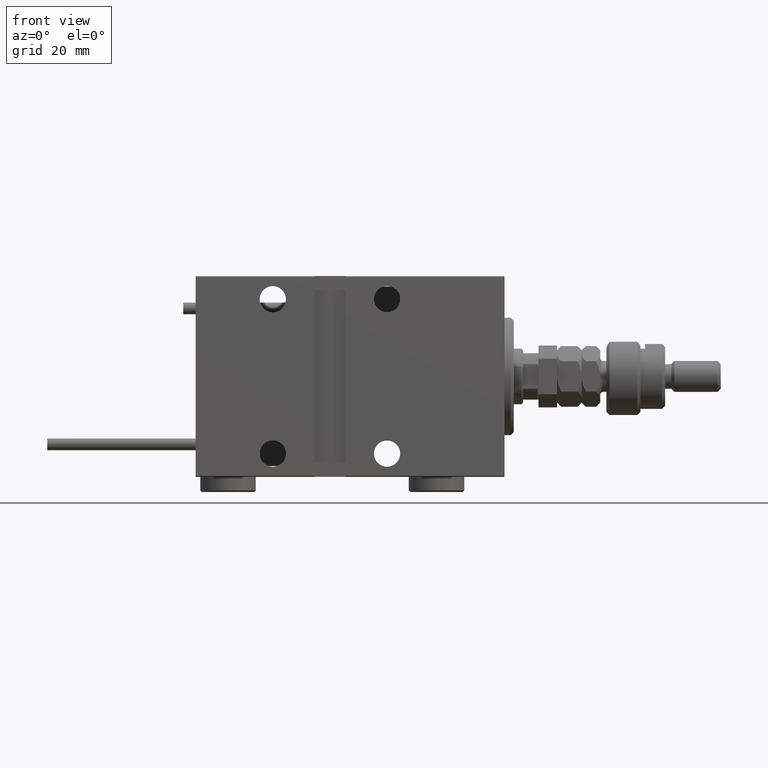
[diagram: clean part render]
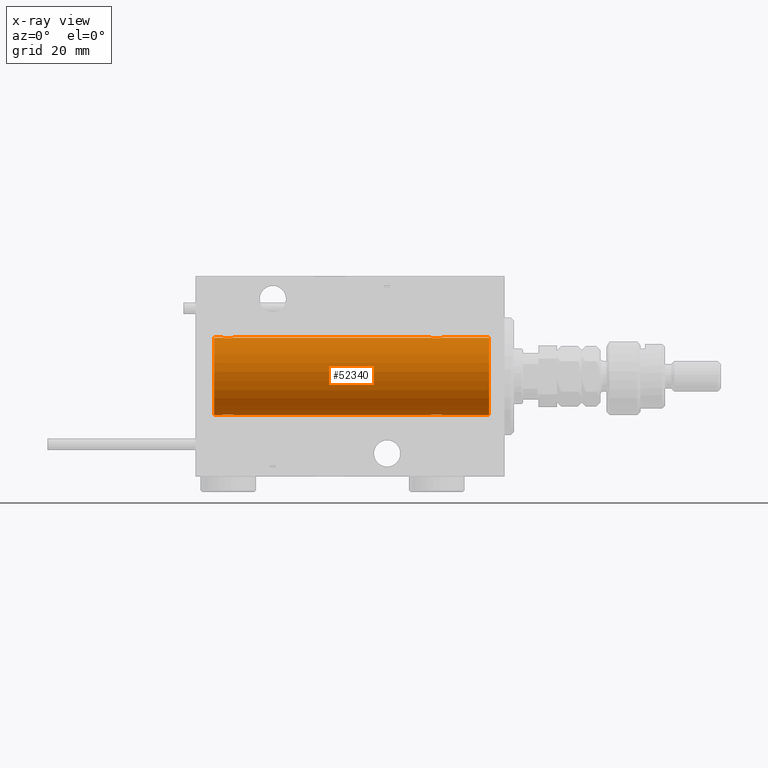
[diagram: x-ray — body ghosted, one internal face saturated and labeled with its STEP entity id]
A machine part, front view, then the same camera in x-ray: the body is ghosted and one INTERNAL B-rep face — a face not visible from any outside direction — is saturated and labeled: STEP entity #52340.
In plain terms, the highlighted cylindrical surface (partial cylindrical patch) has radius 12.5 mm, axis along (1, 0, -0).
Its self-contained STEP definition (entity closure, byte-faithful):
#375 = CARTESIAN_POINT ( 'NONE',  ( 90.71980790594582800, 1.590288205413965539, -12.39864157855464732 ) ) ;
#910 = CARTESIAN_POINT ( 'NONE',  ( 90.14415233770294833, 1.897967064543078619, -12.35517291625592051 ) ) ;
#1347 = CARTESIAN_POINT ( 'NONE',  ( 94.00000000000000000, 0.000000000000000000, 12.50000000000000000 ) ) ;
#2053 = CARTESIAN_POINT ( 'NONE',  ( 88.17897166499305683, 1.507394620545633890, 12.40913174964213539 ) ) ;
#2571 = CARTESIAN_POINT ( 'NONE',  ( 23.89747729701804957, 0.6455696738844942661, 12.48390768591463207 ) ) ;
#2819 = CARTESIAN_POINT ( 'NONE',  ( 23.32102833500698225, 1.507394620545640773, -12.40913174964213184 ) ) ;
#2847 = CARTESIAN_POINT ( 'NONE',  ( 20.49266449635678100, 1.321095788880536137, 12.43034574091278266 ) ) ;
#3076 = CARTESIAN_POINT ( 'NONE',  ( 19.99999999999999645, 0.1323736289504319763, -12.50000000000000000 ) ) ;
#3093 = VECTOR ( 'NONE', #24414, 1000.000000000000000 ) ;
#3253 = CARTESIAN_POINT ( 'NONE',  ( 94.00000000000000000, 1.530808498934191521E-15, -12.50000000000000000 ) ) ;
#3480 = AXIS2_PLACEMENT_3D ( 'NONE', #44845, #20103, #40459 ) ;
#3576 = CARTESIAN_POINT ( 'NONE',  ( 94.00000000000000000, 0.000000000000000000, 12.50000000000000000 ) ) ;
#3623 = CARTESIAN_POINT ( 'NONE',  ( 22.12992629360264729, 2.000049200055402210, -12.33895470450623044 ) ) ;
#3745 = AXIS2_PLACEMENT_3D ( 'NONE', #21519, #28984, #50094 ) ;
#4206 = CARTESIAN_POINT ( 'NONE',  ( 89.76269462454600045, 1.986986967296526352, -12.34109209020653530 ) ) ;
#4486 = CARTESIAN_POINT ( 'NONE',  ( 91.29742491916158542, 0.8868029758979329991, -12.46909283808506430 ) ) ;
#4746 = LINE ( 'NONE', #47287, #48140 ) ;
#4981 = ORIENTED_EDGE ( 'NONE', *, *, #25136, .T. ) ;
#5015 = DIRECTION ( 'NONE',  ( -1.000000000000000000, -0.000000000000000000, -0.000000000000000000 ) ) ;
#5053 = CARTESIAN_POINT ( 'NONE',  ( 19.99999999999999645, -7.265724481447607133E-23, 12.50000000000000000 ) ) ;
#5201 = CARTESIAN_POINT ( 'NONE',  ( 94.00000000000000000, 0.000000000000000000, 12.50000000000000000 ) ) ;
#5260 = LINE ( 'NONE', #22514, #32024 ) ;
#5859 = CARTESIAN_POINT ( 'NONE',  ( 23.98698791483651149, 0.2624928479599948905, 12.49789934882883458 ) ) ;
#6431 = CARTESIAN_POINT ( 'NONE',  ( 88.85584766229712272, 1.897967064543083948, 12.35517291625591874 ) ) ;
#6465 = B_SPLINE_CURVE_WITH_KNOTS ( 'NONE', 3,
 ( #29191, #20919, #37421, #46470, #8857, #29454, #25594, #54144, #21456, #25037, #17336, #50842, #8314, #33024, #4206, #9126, #910, #16794, #33568, #375, #42085, #12674, #13220, #46739, #4486, #21199, #29990, #25850, #17057, #33829 ),
 .UNSPECIFIED., .F., .F.,
 ( 4, 2, 2, 2, 2, 2, 2, 2, 2, 2, 2, 2, 2, 2, 4 ),
 ( 1.893746017792005895E-18, 0.0003914362731607732410, 0.0007828725463215445305, 0.001174308819482315983, 0.001565745092643087326, 0.002348617638964600740, 0.003131490185286113937, 0.003522926458446871186, 0.003914362731607627134, 0.004305799004768384383, 0.004697235277929140765, 0.005088671551089898014, 0.005480107824250654396, 0.005871544097411410777, 0.006262980370572168026 ),
 .UNSPECIFIED. ) ;
#6575 = VERTEX_POINT ( 'NONE', #46160 ) ;
#6643 = CARTESIAN_POINT ( 'NONE',  ( 21.47436412829510033, 1.947190906025044077, -12.34781876294798053 ) ) ;
#7196 = CARTESIAN_POINT ( 'NONE',  ( 24.00000000000000711, 0.1306394121199392910, -12.50000000000000533 ) ) ;
#7230 = CIRCLE ( 'NONE', #3745, 12.50000000000000000 ) ;
#7458 = CARTESIAN_POINT ( 'NONE',  ( 20.49398366327207910, 1.322451657002076120, -12.43019346654084956 ) ) ;
#7929 = VECTOR ( 'NONE', #47191, 1000.000000000000000 ) ;
#8314 = CARTESIAN_POINT ( 'NONE',  ( 89.23788193668380586, 1.999901172190666765, -12.33897869807161385 ) ) ;
#8633 = CIRCLE ( 'NONE', #46340, 12.50000000000000000 ) ;
#8857 = CARTESIAN_POINT ( 'NONE',  ( 87.60252270298197175, 0.6455696738844840521, -12.48390768591463384 ) ) ;
#9098 = ORIENTED_EDGE ( 'NONE', *, *, #28061, .T. ) ;
#9126 = CARTESIAN_POINT ( 'NONE',  ( 90.01937350851557085, 1.935814255713560472, -12.34922241902463114 ) ) ;
#9471 = EDGE_CURVE ( 'NONE', #24945, #36253, #32412, .T. ) ;
#10240 = CARTESIAN_POINT ( 'NONE',  ( 24.00000000000000000, -2.019790789754703983E-15, 12.50000000000000000 ) ) ;
#10519 = CARTESIAN_POINT ( 'NONE',  ( 23.59036680009405629, 1.219754986802283003, 12.44082361696003858 ) ) ;
#10823 = CARTESIAN_POINT ( 'NONE',  ( 5.000000000000004441, 0.000000000000000000, 12.50000000000000000 ) ) ;
#11015 = CARTESIAN_POINT ( 'NONE',  ( 20.26446744561862801, 1.002494658017155871, -12.46021263690096958 ) ) ;
#11048 = CARTESIAN_POINT ( 'NONE',  ( 20.06438225478150272, 0.5201193324741336665, 12.48983485452574982 ) ) ;
#11059 = FACE_OUTER_BOUND ( 'NONE', #33124, .T. ) ;
#11457 = EDGE_CURVE ( 'NONE', #37067, #28137, #36794, .T. ) ;
#11957 = ORIENTED_EDGE ( 'NONE', *, *, #26502, .T. ) ;
#12096 = CARTESIAN_POINT ( 'NONE',  ( 23.73470742397611843, 1.003863686549172352, -12.46009879577771606 ) ) ;
#12674 = CARTESIAN_POINT ( 'NONE',  ( 91.00733550364326163, 1.321095788880530364, -12.43034574091278444 ) ) ;
#13099 = EDGE_CURVE ( 'NONE', #20750, #15736, #8633, .T. ) ;
#13220 = CARTESIAN_POINT ( 'NONE',  ( 91.08991408680633128, 1.220297236145713393, -12.44076681548080821 ) ) ;
#13770 = EDGE_CURVE ( 'NONE', #6575, #19600, #4746, .T. ) ;
#14201 = DIRECTION ( 'NONE',  ( -1.000000000000000000, -0.000000000000000000, -0.000000000000000000 ) ) ;
#14334 = CARTESIAN_POINT ( 'NONE',  ( 21.48062649148445047, 1.935814255713572019, 12.34922241902463469 ) ) ;
#14600 = CARTESIAN_POINT ( 'NONE',  ( 20.67897166499301775, 1.507394620545638997, 12.40913174964213717 ) ) ;
#14621 = CARTESIAN_POINT ( 'NONE',  ( 87.50000000000005684, 0.1306394121199364600, 12.50000000000000355 ) ) ;
#14883 = CARTESIAN_POINT ( 'NONE',  ( 20.00000000000000000, 0.1306394121199368485, 12.50000000000000178 ) ) ;
#14903 = CARTESIAN_POINT ( 'NONE',  ( 87.91008591319375398, 1.220297236145715614, 12.44076681548080821 ) ) ;
#15150 = CARTESIAN_POINT ( 'NONE',  ( 22.52563587170489612, 1.947190906025044521, 12.34781876294798586 ) ) ;
#15170 = CARTESIAN_POINT ( 'NONE',  ( 90.02563587170492099, 1.947190906025039858, 12.34781876294798764 ) ) ;
#15387 = CARTESIAN_POINT ( 'NONE',  ( 23.89773031393658087, 0.6448065707253023415, -12.48394649977302073 ) ) ;
#15659 = CARTESIAN_POINT ( 'NONE',  ( 23.58991408680628155, 1.220297236145721609, -12.44076681548080288 ) ) ;
#15736 = VERTEX_POINT ( 'NONE', #42438 ) ;
#15950 = VERTEX_POINT ( 'NONE', #10823 ) ;
#16794 = CARTESIAN_POINT ( 'NONE',  ( 90.38656313533020636, 1.797558627508987428, -12.37018026341339016 ) ) ;
#17057 = CARTESIAN_POINT ( 'NONE',  ( 91.50000000000005684, 0.1306394121199379033, -12.50000000000000355 ) ) ;
#17336 = CARTESIAN_POINT ( 'NONE',  ( 88.49316879552503678, 1.747608771958125473, -12.37764291807175709 ) ) ;
#18457 = CARTESIAN_POINT ( 'NONE',  ( 22.26211806331625098, 1.999901172190677201, 12.33897869807161563 ) ) ;
#19091 = EDGE_CURVE ( 'NONE', #36253, #15950, #51818, .T. ) ;
#19544 = CARTESIAN_POINT ( 'NONE',  ( 23.79699211628617661, 0.8876934327478163134, 12.46903010196599837 ) ) ;
#19565 = CARTESIAN_POINT ( 'NONE',  ( 91.50000000000002842, 0.1323736289504353347, 12.50000000000000178 ) ) ;
#19600 = VERTEX_POINT ( 'NONE', #49288 ) ;
#20048 = EDGE_CURVE ( 'NONE', #20750, #37067, #34831, .T. ) ;
#20058 = CARTESIAN_POINT ( 'NONE',  ( 22.26269462454597914, 1.986986967296540119, -12.34109209020652465 ) ) ;
#20103 = DIRECTION ( 'NONE',  ( -1.000000000000000000, -0.000000000000000000, -0.000000000000000000 ) ) ;
#20328 = CARTESIAN_POINT ( 'NONE',  ( 22.51937350851555308, 1.935814255713574905, -12.34922241902463114 ) ) ;
#20365 = EDGE_CURVE ( 'NONE', #30735, #38727, #24639, .T. ) ;
#20750 = VERTEX_POINT ( 'NONE', #50621 ) ;
#20759 = ORIENTED_EDGE ( 'NONE', *, *, #13770, .F. ) ;
#20919 = CARTESIAN_POINT ( 'NONE',  ( 87.50000000000002842, 0.1323736289504252872, -12.50000000000000178 ) ) ;
#21199 = CARTESIAN_POINT ( 'NONE',  ( 91.39773031393660574, 0.6448065707252970125, -12.48394649977302429 ) ) ;
#21223 = ORIENTED_EDGE ( 'NONE', *, *, #9471, .T. ) ;
#21456 = CARTESIAN_POINT ( 'NONE',  ( 87.99398366327214660, 1.322451657002059910, -12.43019346654085666 ) ) ;
#21519 = CARTESIAN_POINT ( 'NONE',  ( 5.000000000000004441, 0.000000000000000000, 0.000000000000000000 ) ) ;
#22514 = CARTESIAN_POINT ( 'NONE',  ( 94.00000000000000000, 1.530808498934191521E-15, -12.50000000000000000 ) ) ;
#22586 = CARTESIAN_POINT ( 'NONE',  ( 20.41008591319372201, 1.220297236145719610, 12.44076681548080465 ) ) ;
#22613 = CARTESIAN_POINT ( 'NONE',  ( 90.72966493873154548, 1.598680238462358627, 12.39873273758731997 ) ) ;
#22870 = CARTESIAN_POINT ( 'NONE',  ( 20.26529257602388867, 1.003863686549170353, 12.46009879577771429 ) ) ;
#22892 = CARTESIAN_POINT ( 'NONE',  ( 87.76529257602393841, 1.003863686549167245, 12.46009879577771073 ) ) ;
#23131 = CARTESIAN_POINT ( 'NONE',  ( 23.50601633672791380, 1.322451657002079450, 12.43019346654085133 ) ) ;
#23366 = CARTESIAN_POINT ( 'NONE',  ( 23.79742491916155700, 0.8868029758979399935, -12.46909283808506430 ) ) ;
#23431 = CARTESIAN_POINT ( 'NONE',  ( 87.60226968606343689, 0.6448065707252962353, 12.48394649977302429 ) ) ;
#24414 = DIRECTION ( 'NONE',  ( -1.000000000000000000, -0.000000000000000000, -0.000000000000000000 ) ) ;
#24525 = ORIENTED_EDGE ( 'NONE', *, *, #20048, .T. ) ;
#24639 = LINE ( 'NONE', #3253, #35071 ) ;
#24732 = ORIENTED_EDGE ( 'NONE', *, *, #19091, .T. ) ;
#24945 = VERTEX_POINT ( 'NONE', #47408 ) ;
#25037 = CARTESIAN_POINT ( 'NONE',  ( 88.27033506126853979, 1.598680238462352188, -12.39873273758732175 ) ) ;
#25136 = EDGE_CURVE ( 'NONE', #15950, #38727, #7230, .T. ) ;
#25594 = CARTESIAN_POINT ( 'NONE',  ( 87.76446744561867774, 1.002494658017143658, -12.46021263690097136 ) ) ;
#25850 = CARTESIAN_POINT ( 'NONE',  ( 91.48690384766258887, 0.2633501011236116240, -12.49788564268284041 ) ) ;
#26502 = EDGE_CURVE ( 'NONE', #6575, #38526, #6465, .T. ) ;
#26988 = CARTESIAN_POINT ( 'NONE',  ( 21.73730537545401731, 1.986986967296538120, 12.34109209020652642 ) ) ;
#27270 = ORIENTED_EDGE ( 'NONE', *, *, #11457, .T. ) ;
#27561 = CARTESIAN_POINT ( 'NONE',  ( 89.37007370639736337, 2.000049200055392440, 12.33895470450622689 ) ) ;
#27775 = CARTESIAN_POINT ( 'NONE',  ( 22.64415233770293412, 1.897967064543090165, -12.35517291625592051 ) ) ;
#27807 = CARTESIAN_POINT ( 'NONE',  ( 20.01309615233744665, 0.2633501011236107914, 12.49788564268284041 ) ) ;
#28055 = CARTESIAN_POINT ( 'NONE',  ( 19.99999999999999645, -3.966047509268588167E-15, -12.50000000000000000 ) ) ;
#28061 = EDGE_CURVE ( 'NONE', #28137, #24945, #37322, .T. ) ;
#28137 = VERTEX_POINT ( 'NONE', #33997 ) ;
#28281 = ORIENTED_EDGE ( 'NONE', *, *, #20365, .F. ) ;
#28319 = CARTESIAN_POINT ( 'NONE',  ( 20.20300788371381273, 0.8876934327478117615, -12.46903010196599304 ) ) ;
#28593 = CARTESIAN_POINT ( 'NONE',  ( 23.00335814299181436, 1.734998657226765939, -12.37922086519035325 ) ) ;
#28873 = CARTESIAN_POINT ( 'NONE',  ( 20.01301208516349206, 0.2624928479599882847, -12.49789934882883458 ) ) ;
#28984 = DIRECTION ( 'NONE',  ( -1.000000000000000000, 0.000000000000000000, 0.000000000000000000 ) ) ;
#29191 = CARTESIAN_POINT ( 'NONE',  ( 87.50000000000002842, -8.176262823880599614E-15, -12.50000000000000000 ) ) ;
#29454 = CARTESIAN_POINT ( 'NONE',  ( 87.70300788371382339, 0.8876934327478049891, -12.46903010196599659 ) ) ;
#29688 = ORIENTED_EDGE ( 'NONE', *, *, #40051, .F. ) ;
#29990 = CARTESIAN_POINT ( 'NONE',  ( 91.43561774521855057, 0.5201193324741325563, -12.48983485452575337 ) ) ;
#30735 = VERTEX_POINT ( 'NONE', #30913 ) ;
#30913 = CARTESIAN_POINT ( 'NONE',  ( 19.99999999999999645, -3.966047509268588167E-15, -12.50000000000000000 ) ) ;
#31096 = CARTESIAN_POINT ( 'NONE',  ( 21.87007370639734205, 2.000049200055400433, 12.33895470450622867 ) ) ;
#31120 = CARTESIAN_POINT ( 'NONE',  ( 87.51309615233751060, 0.2633501011236108469, 12.49788564268284041 ) ) ;
#31371 = CARTESIAN_POINT ( 'NONE',  ( 23.00683120447498808, 1.747608771958142793, 12.37764291807175709 ) ) ;
#31542 = ORIENTED_EDGE ( 'NONE', *, *, #13099, .F. ) ;
#31557 = CARTESIAN_POINT ( 'NONE',  ( 5.000000000000004441, 1.530808498934191521E-15, -12.50000000000000000 ) ) ;
#31659 = CYLINDRICAL_SURFACE ( 'NONE', #3480, 12.50000000000000000 ) ;
#31877 = CARTESIAN_POINT ( 'NONE',  ( 20.99316879552500481, 1.747608771958139906, -12.37764291807175354 ) ) ;
#31912 = CARTESIAN_POINT ( 'NONE',  ( 21.11343686466983982, 1.797558627508994533, 12.37018026341338484 ) ) ;
#31933 = CARTESIAN_POINT ( 'NONE',  ( 87.99266449635685206, 1.321095788880532362, 12.43034574091278444 ) ) ;
#32024 = VECTOR ( 'NONE', #39294, 1000.000000000000000 ) ;
#32412 = B_SPLINE_CURVE_WITH_KNOTS ( 'NONE', 3,
 ( #10240, #52507, #5859, #47857, #2571, #19544, #35502, #10519, #23131, #52782, #31371, #15150, #18457, #31096, #26988, #14334, #39898, #31912, #48679, #40172, #14600, #2847, #22586, #22870, #53050, #52226, #11048, #27807, #14883, #44565 ),
 .UNSPECIFIED., .F., .F.,
 ( 4, 2, 2, 2, 2, 2, 2, 2, 2, 2, 2, 2, 2, 2, 4 ),
 ( 3.101773669235365923E-18, 0.0003914362731607605559, 0.0007828725463215181844, 0.001174308819482275650, 0.001565745092643033550, 0.002348617638964548265, 0.003131490185286063196, 0.003522926458446825216, 0.003914362731607588103, 0.004305799004768350556, 0.004697235277929112142, 0.005088671551089875462, 0.005480107824250637048, 0.005871544097411400369, 0.006262980370572162822 ),
 .UNSPECIFIED. ) ;
#32970 = CARTESIAN_POINT ( 'NONE',  ( 20.77033506126850426, 1.598680238462369951, -12.39873273758732175 ) ) ;
#33024 = CARTESIAN_POINT ( 'NONE',  ( 89.62992629360266506, 2.000049200055388443, -12.33895470450623044 ) ) ;
#33124 = EDGE_LOOP ( 'NONE', ( #29688, #31542, #24525, #27270, #9098, #21223, #24732, #4981, #28281, #42531, #20759, #11957 ) ) ;
#33568 = CARTESIAN_POINT ( 'NONE',  ( 90.50335814299187120, 1.734998657226755947, -12.37922086519035858 ) ) ;
#33829 = CARTESIAN_POINT ( 'NONE',  ( 91.50000000000002842, 1.530808426270318106E-15, -12.50000000000000000 ) ) ;
#33997 = CARTESIAN_POINT ( 'NONE',  ( 87.50000000000002842, -7.266434456262306043E-23, 12.50000000000000000 ) ) ;
#34831 = LINE ( 'NONE', #5201, #7929 ) ;
#35071 = VECTOR ( 'NONE', #36742, 1000.000000000000000 ) ;
#35263 = CARTESIAN_POINT ( 'NONE',  ( 87.56438225478156312, 0.5201193324741318902, 12.48983485452575337 ) ) ;
#35502 = CARTESIAN_POINT ( 'NONE',  ( 23.73553255438137555, 1.002494658017160090, 12.46021263690097491 ) ) ;
#35525 = CARTESIAN_POINT ( 'NONE',  ( 88.61343686466992153, 1.797558627508992535, 12.37018026341338839 ) ) ;
#35796 = CARTESIAN_POINT ( 'NONE',  ( 89.76211806331626519, 1.999901172190670762, 12.33897869807161385 ) ) ;
#36082 = CARTESIAN_POINT ( 'NONE',  ( 91.50000000000002842, 3.163483401492493339E-15, 12.50000000000000000 ) ) ;
#36253 = VERTEX_POINT ( 'NONE', #5053 ) ;
#36287 = CARTESIAN_POINT ( 'NONE',  ( 24.00000000000000000, 1.530808426277417854E-15, -12.50000000000000000 ) ) ;
#36341 = CARTESIAN_POINT ( 'NONE',  ( 88.49664185700822827, 1.734998657226760832, 12.37922086519036036 ) ) ;
#36742 = DIRECTION ( 'NONE',  ( -1.000000000000000000, -0.000000000000000000, -0.000000000000000000 ) ) ;
#36794 = B_SPLINE_CURVE_WITH_KNOTS ( 'NONE', 3,
 ( #36082, #19565, #44046, #43504, #47613, #53068, #52252, #52805, #47881, #22613, #48703, #15170, #35796, #27561, #52533, #40195, #6431, #35525, #36341, #39394, #2053, #31933, #14903, #22892, #51984, #23431, #35263, #31120, #14621, #48161 ),
 .UNSPECIFIED., .F., .F.,
 ( 4, 2, 2, 2, 2, 2, 2, 2, 2, 2, 2, 2, 2, 2, 4 ),
 ( 3.073563828301030308E-18, 0.0003914362731607732952, 0.0007828725463215434463, 0.001174308819482313597, 0.001565745092643083857, 0.002348617638964595102, 0.003131490185286106131, 0.003522926458446862079, 0.003914362731607617593, 0.004305799004768373107, 0.004697235277929129489, 0.005088671551089885003, 0.005480107824250639650, 0.005871544097411396032, 0.006262980370572151546 ),
 .UNSPECIFIED. ) ;
#37067 = VERTEX_POINT ( 'NONE', #47594 ) ;
#37098 = CARTESIAN_POINT ( 'NONE',  ( 23.93561774521849728, 0.5201193324741352209, -12.48983485452574982 ) ) ;
#37322 = LINE ( 'NONE', #3576, #3093 ) ;
#37421 = CARTESIAN_POINT ( 'NONE',  ( 87.51301208516352403, 0.2624928479599822340, -12.49789934882883458 ) ) ;
#37506 = EDGE_CURVE ( 'NONE', #30735, #19600, #48524, .T. ) ;
#38526 = VERTEX_POINT ( 'NONE', #44876 ) ;
#38727 = VERTEX_POINT ( 'NONE', #31557 ) ;
#38986 = CARTESIAN_POINT ( 'NONE',  ( 94.00000000000000000, 0.000000000000000000, 0.000000000000000000 ) ) ;
#39294 = DIRECTION ( 'NONE',  ( -1.000000000000000000, -0.000000000000000000, -0.000000000000000000 ) ) ;
#39394 = CARTESIAN_POINT ( 'NONE',  ( 88.28019209405425727, 1.590288205413970202, 12.39864157855464910 ) ) ;
#39898 = CARTESIAN_POINT ( 'NONE',  ( 21.35584766229707654, 1.897967064543088389, 12.35517291625592406 ) ) ;
#40051 = EDGE_CURVE ( 'NONE', #15736, #38526, #5260, .T. ) ;
#40134 = CARTESIAN_POINT ( 'NONE',  ( 23.98690384766256400, 0.2633501011236120681, -12.49788564268284041 ) ) ;
#40172 = CARTESIAN_POINT ( 'NONE',  ( 20.78019209405420042, 1.590288205413970646, 12.39864157855464910 ) ) ;
#40195 = CARTESIAN_POINT ( 'NONE',  ( 88.98062649148445757, 1.935814255713564691, 12.34922241902462758 ) ) ;
#40314 = VECTOR ( 'NONE', #14201, 1000.000000000000000 ) ;
#40414 = CARTESIAN_POINT ( 'NONE',  ( 21.73788193668374902, 1.999901172190678533, -12.33897869807161385 ) ) ;
#40459 = DIRECTION ( 'NONE',  ( 0.000000000000000000, 0.000000000000000000, 1.000000000000000000 ) ) ;
#41230 = CARTESIAN_POINT ( 'NONE',  ( 20.40963319990594016, 1.219754986802279451, -12.44082361696003503 ) ) ;
#42085 = CARTESIAN_POINT ( 'NONE',  ( 90.82102833500701422, 1.507394620545632336, -12.40913174964213539 ) ) ;
#42301 = DIRECTION ( 'NONE',  ( -1.000000000000000000, 0.000000000000000000, 0.000000000000000000 ) ) ;
#42438 = CARTESIAN_POINT ( 'NONE',  ( 94.00000000000000000, 1.530808498934191521E-15, -12.50000000000000000 ) ) ;
#42531 = ORIENTED_EDGE ( 'NONE', *, *, #37506, .T. ) ;
#43504 = CARTESIAN_POINT ( 'NONE',  ( 91.43604351777365480, 0.5184196815546076031, 12.48990118705761354 ) ) ;
#44046 = CARTESIAN_POINT ( 'NONE',  ( 91.48698791483656123, 0.2624928479599940023, 12.49789934882883458 ) ) ;
#44565 = CARTESIAN_POINT ( 'NONE',  ( 19.99999999999999645, -7.265724481447607133E-23, 12.50000000000000000 ) ) ;
#44802 = CARTESIAN_POINT ( 'NONE',  ( 22.88656313533016373, 1.797558627508998086, -12.37018026341338839 ) ) ;
#44845 = CARTESIAN_POINT ( 'NONE',  ( 94.00000000000000000, 0.000000000000000000, 0.000000000000000000 ) ) ;
#44876 = CARTESIAN_POINT ( 'NONE',  ( 91.50000000000002842, 1.530808426270318106E-15, -12.50000000000000000 ) ) ;
#46160 = CARTESIAN_POINT ( 'NONE',  ( 87.50000000000002842, -8.176262823880599614E-15, -12.50000000000000000 ) ) ;
#46340 = AXIS2_PLACEMENT_3D ( 'NONE', #38986, #42301, #51053 ) ;
#46470 = CARTESIAN_POINT ( 'NONE',  ( 87.56395648222640204, 0.5184196815545968340, -12.48990118705761354 ) ) ;
#46739 = CARTESIAN_POINT ( 'NONE',  ( 91.23470742397611843, 1.003863686549164580, -12.46009879577771073 ) ) ;
#47191 = DIRECTION ( 'NONE',  ( -1.000000000000000000, -0.000000000000000000, -0.000000000000000000 ) ) ;
#47287 = CARTESIAN_POINT ( 'NONE',  ( 94.00000000000000000, 1.530808498934191521E-15, -12.50000000000000000 ) ) ;
#47408 = CARTESIAN_POINT ( 'NONE',  ( 24.00000000000000000, -2.019790789754703983E-15, 12.50000000000000000 ) ) ;
#47594 = CARTESIAN_POINT ( 'NONE',  ( 91.50000000000002842, 3.163483401492493339E-15, 12.50000000000000000 ) ) ;
#47613 = CARTESIAN_POINT ( 'NONE',  ( 91.39747729701809931, 0.6455696738844914906, 12.48390768591463384 ) ) ;
#47857 = CARTESIAN_POINT ( 'NONE',  ( 23.93604351777362993, 0.5184196815546091575, 12.48990118705761709 ) ) ;
#47881 = CARTESIAN_POINT ( 'NONE',  ( 91.00601633672795288, 1.322451657002065906, 12.43019346654085489 ) ) ;
#48140 = VECTOR ( 'NONE', #5015, 1000.000000000000000 ) ;
#48161 = CARTESIAN_POINT ( 'NONE',  ( 87.50000000000002842, -7.266434456262306043E-23, 12.50000000000000000 ) ) ;
#48524 = B_SPLINE_CURVE_WITH_KNOTS ( 'NONE', 3,
 ( #28055, #3076, #28873, #49712, #48919, #28319, #11015, #41230, #7458, #32970, #31877, #6643, #40414, #3623, #20058, #20328, #27775, #44802, #28593, #48643, #2819, #53559, #15659, #12096, #23366, #15387, #37098, #40134, #7196, #36287 ),
 .UNSPECIFIED., .F., .F.,
 ( 4, 2, 2, 2, 2, 2, 2, 2, 2, 2, 2, 2, 2, 2, 4 ),
 ( 3.611342868676865251E-19, 0.0003914362731607586585, 0.0007828725463215168833, 0.001174308819482275217, 0.001565745092643033550, 0.002348617638964549999, 0.003131490185286066666, 0.003522926458446830420, 0.003914362731607594174, 0.004305799004768357495, 0.004697235277929121683, 0.005088671551089885003, 0.005480107824250649191, 0.005871544097411412512, 0.006262980370572176700 ),
 .UNSPECIFIED. ) ;
#48643 = CARTESIAN_POINT ( 'NONE',  ( 23.21980790594580313, 1.590288205413975309, -12.39864157855465088 ) ) ;
#48679 = CARTESIAN_POINT ( 'NONE',  ( 20.99664185700817853, 1.734998657226762830, 12.37922086519035680 ) ) ;
#48703 = CARTESIAN_POINT ( 'NONE',  ( 90.50683120447500585, 1.747608771958138352, 12.37764291807175709 ) ) ;
#48919 = CARTESIAN_POINT ( 'NONE',  ( 20.10252270298193622, 0.6455696738844897142, -12.48390768591463207 ) ) ;
#49288 = CARTESIAN_POINT ( 'NONE',  ( 24.00000000000000000, 1.530808426277417854E-15, -12.50000000000000000 ) ) ;
#49712 = CARTESIAN_POINT ( 'NONE',  ( 20.06395648222636652, 0.5184196815546032733, -12.48990118705761532 ) ) ;
#50094 = DIRECTION ( 'NONE',  ( 0.000000000000000000, 0.000000000000000000, 1.000000000000000000 ) ) ;
#50621 = CARTESIAN_POINT ( 'NONE',  ( 94.00000000000000000, 0.000000000000000000, 12.50000000000000000 ) ) ;
#50842 = CARTESIAN_POINT ( 'NONE',  ( 88.97436412829512165, 1.947190906025030976, -12.34781876294798408 ) ) ;
#51053 = DIRECTION ( 'NONE',  ( 0.000000000000000000, 0.000000000000000000, 1.000000000000000000 ) ) ;
#51818 = LINE ( 'NONE', #1347, #40314 ) ;
#51984 = CARTESIAN_POINT ( 'NONE',  ( 87.70257508083849984, 0.8868029758979321109, 12.46909283808506430 ) ) ;
#52226 = CARTESIAN_POINT ( 'NONE',  ( 20.10226968606341202, 0.6448065707252997880, 12.48394649977302073 ) ) ;
#52252 = CARTESIAN_POINT ( 'NONE',  ( 91.23553255438137910, 1.002494658017152318, 12.46021263690097136 ) ) ;
#52340 = ADVANCED_FACE ( 'NONE', ( #11059 ), #31659, .F. ) ;
#52507 = CARTESIAN_POINT ( 'NONE',  ( 23.99999999999999645, 0.1323736289504348906, 12.50000000000000000 ) ) ;
#52533 = CARTESIAN_POINT ( 'NONE',  ( 89.23730537545408481, 1.986986967296531015, 12.34109209020653353 ) ) ;
#52782 = CARTESIAN_POINT ( 'NONE',  ( 23.22966493873148863, 1.598680238462371284, 12.39873273758732175 ) ) ;
#52805 = CARTESIAN_POINT ( 'NONE',  ( 91.09036680009408826, 1.219754986802274344, 12.44082361696003503 ) ) ;
#53050 = CARTESIAN_POINT ( 'NONE',  ( 20.20257508083844300, 0.8868029758979374400, 12.46909283808506252 ) ) ;
#53068 = CARTESIAN_POINT ( 'NONE',  ( 91.29699211628617661, 0.8876934327478118725, 12.46903010196599659 ) ) ;
#53559 = CARTESIAN_POINT ( 'NONE',  ( 23.50733550364322255, 1.321095788880538136, -12.43034574091277911 ) ) ;
#54144 = CARTESIAN_POINT ( 'NONE',  ( 87.90963319990596858, 1.219754986802266128, -12.44082361696003503 ) ) ;